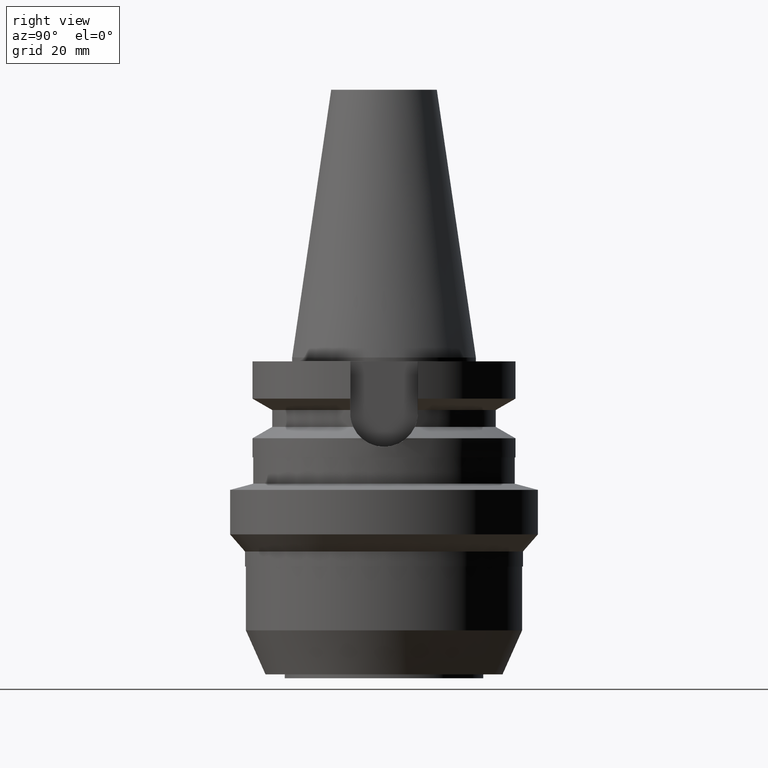
[diagram: clean part render]
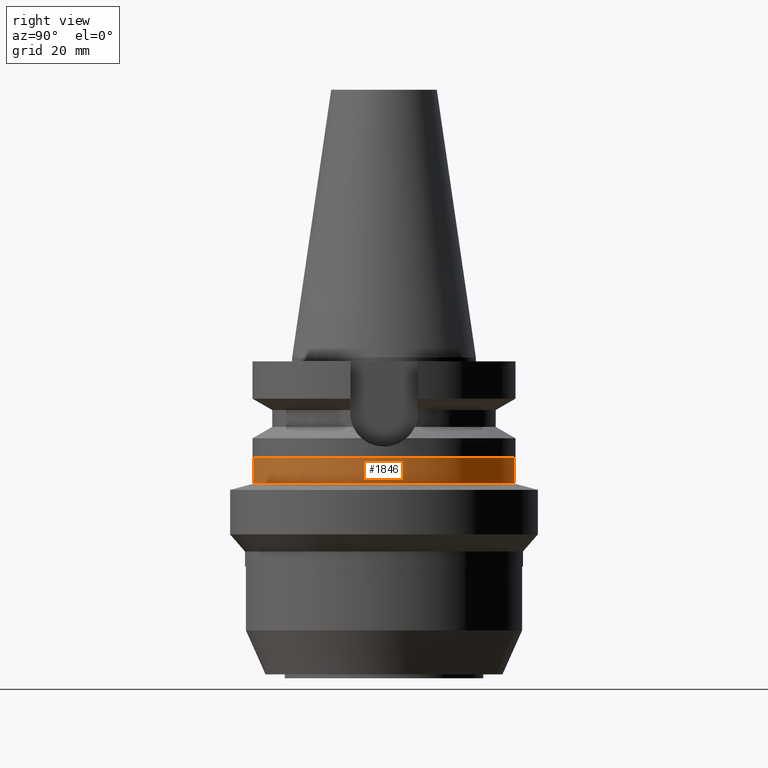
[diagram: same view with one face highlighted and labeled with its STEP entity id]
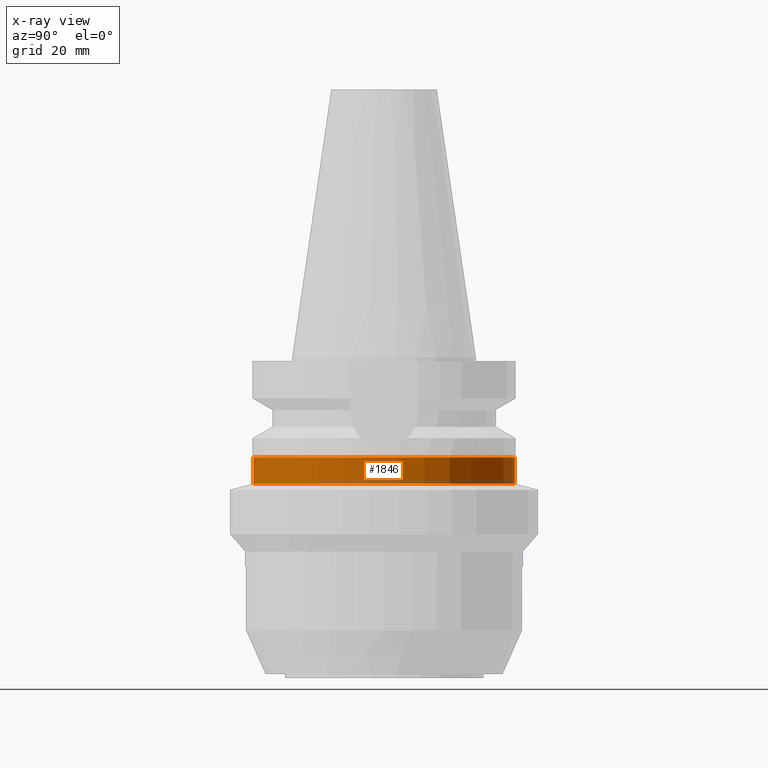
[diagram: x-ray of the same camera — body ghosted, the highlighted face saturated]
A machine part, right view. The second image highlights one B-rep face of the part: STEP entity #1846.
The next image is the same camera in x-ray: the body ghosted, the highlighted face saturated — about 0% of this face is hidden behind the body in this view.
In plain terms, the highlighted cylindrical surface (partial cylindrical patch) has radius 49.7 mm, axis along (0, 0, -1).
Its self-contained STEP definition (entity closure, byte-faithful):
#512=CARTESIAN_POINT('',(0.E0,0.E0,-4.8E1));
#513=DIRECTION('',(0.E0,0.E0,1.E0));
#514=DIRECTION('',(0.E0,-1.E0,0.E0));
#515=AXIS2_PLACEMENT_3D('',#512,#513,#514);
#520=DIRECTION('',(0.E0,-3.836930773104E-14,-1.E0));
#521=VECTOR('',#520,1.E1);
#522=CARTESIAN_POINT('',(0.E0,4.97E1,-3.8E1));
#523=LINE('',#522,#521);
#527=DIRECTION('',(0.E0,3.907985046680E-14,-1.E0));
#528=VECTOR('',#527,1.E1);
#529=CARTESIAN_POINT('',(0.E0,-4.97E1,-3.8E1));
#530=LINE('',#529,#528);
#558=CARTESIAN_POINT('',(0.E0,1.383728418357E-14,-3.8E1));
#559=DIRECTION('',(0.E0,0.E0,-1.E0));
#560=DIRECTION('',(0.E0,1.E0,0.E0));
#561=AXIS2_PLACEMENT_3D('',#558,#559,#560);
#1254=CARTESIAN_POINT('',(0.E0,4.97E1,-4.8E1));
#1255=VERTEX_POINT('',#1254);
#1256=CARTESIAN_POINT('',(0.E0,-4.97E1,-4.8E1));
#1257=VERTEX_POINT('',#1256);
#1258=CARTESIAN_POINT('',(0.E0,4.97E1,-3.8E1));
#1259=VERTEX_POINT('',#1258);
#1260=CARTESIAN_POINT('',(0.E0,-4.97E1,-3.8E1));
#1261=VERTEX_POINT('',#1260);
#1832=CARTESIAN_POINT('',(0.E0,1.383728418357E-14,1.1299E2));
#1833=DIRECTION('',(0.E0,0.E0,-1.E0));
#1834=DIRECTION('',(0.E0,-1.E0,0.E0));
#1835=AXIS2_PLACEMENT_3D('',#1832,#1833,#1834);
#1836=CYLINDRICAL_SURFACE('',#1835,4.97E1);
#1838=ORIENTED_EDGE('',*,*,#1837,.T.);
#1839=ORIENTED_EDGE('',*,*,#1827,.F.);
#1841=ORIENTED_EDGE('',*,*,#1840,.F.);
#1843=ORIENTED_EDGE('',*,*,#1842,.F.);
#1844=EDGE_LOOP('',(#1838,#1839,#1841,#1843));
#1845=FACE_OUTER_BOUND('',#1844,.F.);
#516=CIRCLE('',#515,4.97E1);
#562=CIRCLE('',#561,4.97E1);
#1827=EDGE_CURVE('',#1257,#1255,#516,.T.);
#1837=EDGE_CURVE('',#1259,#1255,#523,.T.);
#1840=EDGE_CURVE('',#1261,#1257,#530,.T.);
#1842=EDGE_CURVE('',#1259,#1261,#562,.T.);
#1846=ADVANCED_FACE('',(#1845),#1836,.T.);